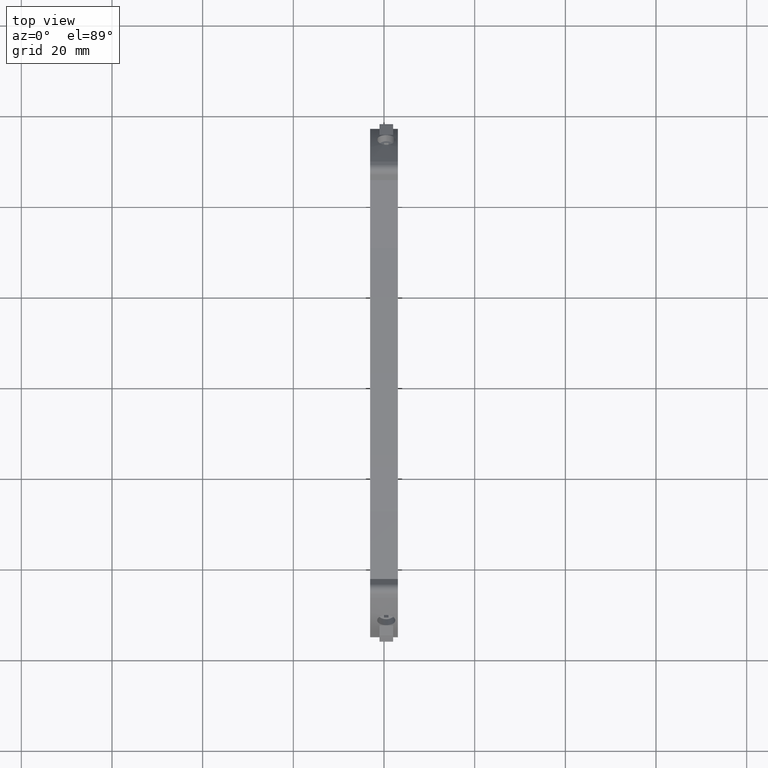
[diagram: clean part render]
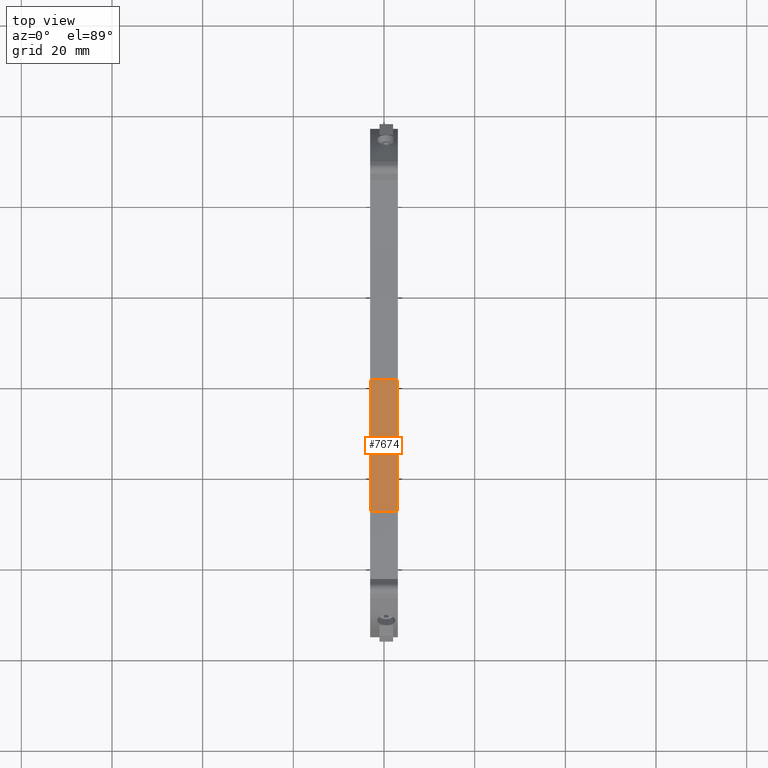
[diagram: same view with one face highlighted and labeled with its STEP entity id]
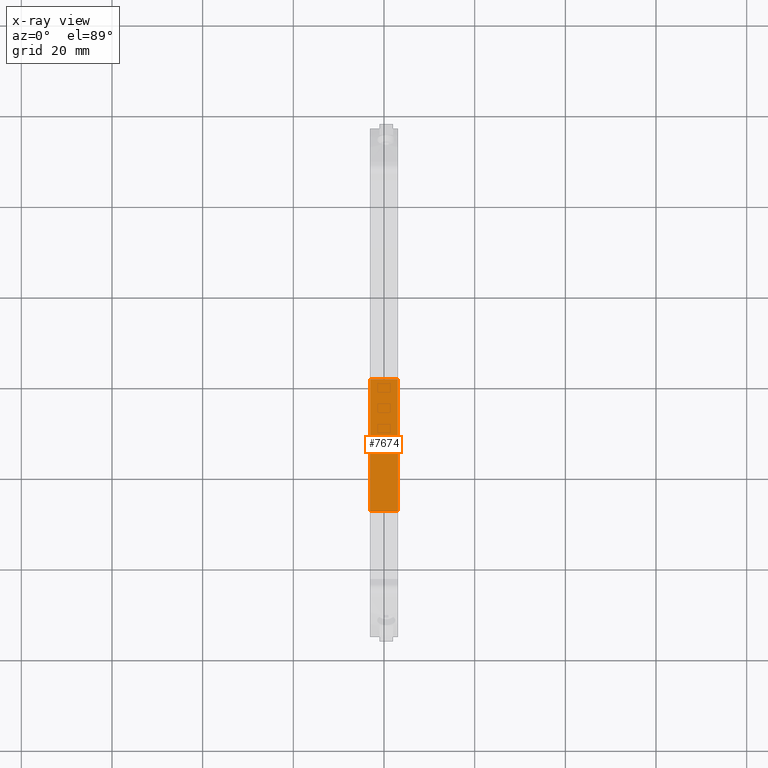
[diagram: x-ray of the same camera — body ghosted, the highlighted face saturated]
A machine part, top view. The second image highlights one B-rep face of the part: STEP entity #7674.
The next image is the same camera in x-ray: the body ghosted, the highlighted face saturated — about 0% of this face is hidden behind the body in this view.
In plain terms, the highlighted cylindrical surface (partial cylindrical patch) has radius 421 mm, axis along (-1, -0, -0).
Its self-contained STEP definition (entity closure, byte-faithful):
#325 = VERTEX_POINT ( 'NONE', #7177 ) ;
#530 = VERTEX_POINT ( 'NONE', #5779 ) ;
#1030 = VERTEX_POINT ( 'NONE', #14104 ) ;
#1408 = EDGE_CURVE ( 'NONE', #325, #530, #7966, .T. ) ;
#2123 = EDGE_LOOP ( 'NONE', ( #13789, #6242, #12244, #12306 ) ) ;
#2155 = VECTOR ( 'NONE', #8314, 39.37007874015748143 ) ;
#2902 = FACE_OUTER_BOUND ( 'NONE', #2123, .T. ) ;
#3331 = CIRCLE ( 'NONE', #5557, 16.57480314960641010 ) ;
#3360 = DIRECTION ( 'NONE',  ( -1.000000000000000000, -0.000000000000000000, -0.000000000000000000 ) ) ;
#3907 = CYLINDRICAL_SURFACE ( 'NONE', #10414, 16.57480314960641010 ) ;
#4072 = DIRECTION ( 'NONE',  ( 0.000000000000000000, 0.000000000000000000, 1.000000000000000000 ) ) ;
#4516 = CARTESIAN_POINT ( 'NONE',  ( 0.1200787401574803098, 0.000000000000000000, 0.03937007874015970021 ) ) ;
#4619 = EDGE_CURVE ( 'NONE', #12402, #1030, #3331, .T. ) ;
#4906 = CARTESIAN_POINT ( 'NONE',  ( 0.1200787401574803098, -1.141732283464570674, 2.493849834468156699E-16 ) ) ;
#5557 = AXIS2_PLACEMENT_3D ( 'NONE', #7783, #8928, #4072 ) ;
#5779 = CARTESIAN_POINT ( 'NONE',  ( -0.1200787401574803098, -1.141732283464590214, 1.586033690556766129E-16 ) ) ;
#6179 = EDGE_CURVE ( 'NONE', #12402, #530, #9624, .T. ) ;
#6226 = AXIS2_PLACEMENT_3D ( 'NONE', #14318, #7194, #13080 ) ;
#6242 = ORIENTED_EDGE ( 'NONE', *, *, #13399, .T. ) ;
#7177 = CARTESIAN_POINT ( 'NONE',  ( -0.1200787401574803098, -2.029827962366295633E-15, 0.03937007874015970021 ) ) ;
#7194 = DIRECTION ( 'NONE',  ( 1.000000000000000000, 0.000000000000000000, 0.000000000000000000 ) ) ;
#7674 = ADVANCED_FACE ( 'NONE', ( #2902 ), #3907, .T. ) ;
#7783 = CARTESIAN_POINT ( 'NONE',  ( 0.1200787401574802959, 0.000000000000000000, -16.53543307086625092 ) ) ;
#7966 = CIRCLE ( 'NONE', #6226, 16.57480314960641010 ) ;
#8314 = DIRECTION ( 'NONE',  ( -1.000000000000000000, -0.000000000000000000, -0.000000000000000000 ) ) ;
#8699 = DIRECTION ( 'NONE',  ( 0.000000000000000000, 0.000000000000000000, 1.000000000000000000 ) ) ;
#8928 = DIRECTION ( 'NONE',  ( -1.000000000000000000, -0.000000000000000000, -0.000000000000000000 ) ) ;
#9051 = CARTESIAN_POINT ( 'NONE',  ( 0.1200787401574802682, -1.141732283464590214, 1.586033690556766129E-16 ) ) ;
#9624 = LINE ( 'NONE', #4906, #2155 ) ;
#10414 = AXIS2_PLACEMENT_3D ( 'NONE', #13417, #12096, #8699 ) ;
#12096 = DIRECTION ( 'NONE',  ( -1.000000000000000000, -0.000000000000000000, -0.000000000000000000 ) ) ;
#12244 = ORIENTED_EDGE ( 'NONE', *, *, #1408, .T. ) ;
#12306 = ORIENTED_EDGE ( 'NONE', *, *, #6179, .F. ) ;
#12402 = VERTEX_POINT ( 'NONE', #9051 ) ;
#13080 = DIRECTION ( 'NONE',  ( 0.000000000000000000, 0.000000000000000000, 1.000000000000000000 ) ) ;
#13399 = EDGE_CURVE ( 'NONE', #1030, #325, #15103, .T. ) ;
#13417 = CARTESIAN_POINT ( 'NONE',  ( 0.1200787401574803098, 0.000000000000000000, -16.53543307086625092 ) ) ;
#13789 = ORIENTED_EDGE ( 'NONE', *, *, #4619, .T. ) ;
#14104 = CARTESIAN_POINT ( 'NONE',  ( 0.1200787401574803098, -2.029827962366295633E-15, 0.03937007874015970021 ) ) ;
#14107 = VECTOR ( 'NONE', #3360, 39.37007874015748143 ) ;
#14318 = CARTESIAN_POINT ( 'NONE',  ( -0.1200787401574803098, 0.000000000000000000, -16.53543307086625092 ) ) ;
#15103 = LINE ( 'NONE', #4516, #14107 ) ;